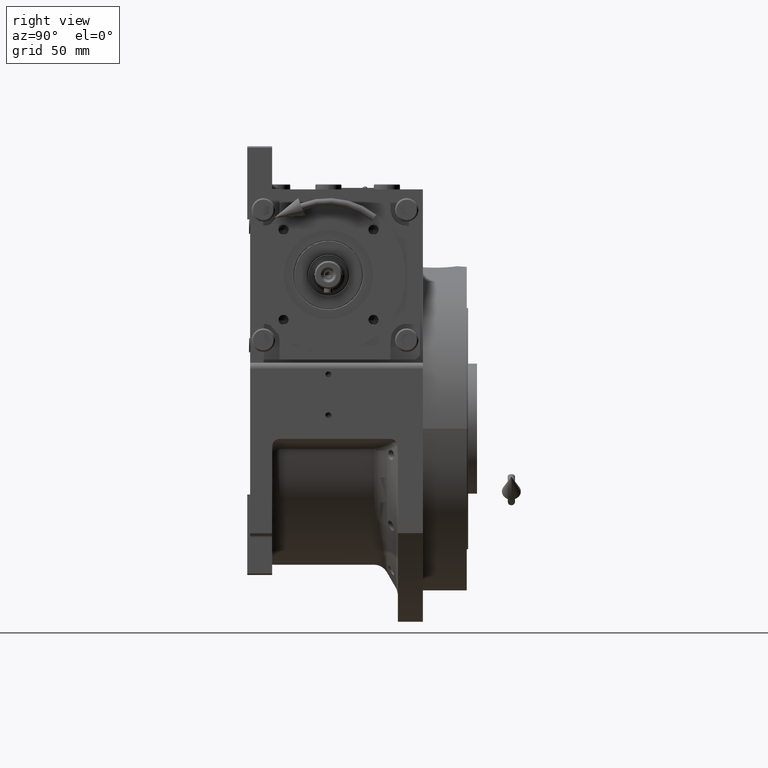
[diagram: clean part render]
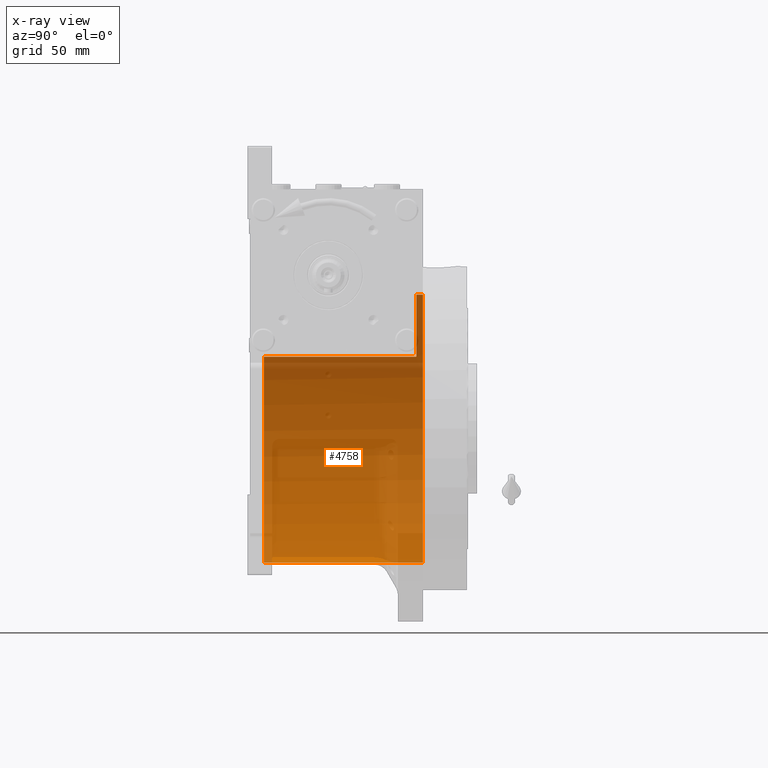
[diagram: x-ray — body ghosted, one internal face saturated and labeled with its STEP entity id]
A machine part, right view, then the same camera in x-ray: the body is ghosted and one INTERNAL B-rep face — a face not visible from any outside direction — is saturated and labeled: STEP entity #4758.
In plain terms, the highlighted cylindrical surface (partial cylindrical patch) has radius 91.5 mm, axis along (0, -1, 0).
Its self-contained STEP definition (entity closure, byte-faithful):
#2022 = ORIENTED_EDGE ( 'NONE', *, *, #13166, .F. ) ;
#2578 = CARTESIAN_POINT ( 'NONE',  ( -77.27386362800812947, 69.00000000000004263, 48.99999999999998579 ) ) ;
#3222 = DIRECTION ( 'NONE',  ( 0.000000000000000000, 1.000000000000000000, 0.000000000000000000 ) ) ;
#3641 = DIRECTION ( 'NONE',  ( 0.000000000000000000, 0.000000000000000000, 1.000000000000000000 ) ) ;
#4227 = CYLINDRICAL_SURFACE ( 'NONE', #43295, 91.50000000000000000 ) ;
#4758 = ADVANCED_FACE ( 'NONE', ( #13722 ), #4227, .F. ) ;
#6984 = EDGE_CURVE ( 'NONE', #25035, #27068, #33714, .T. ) ;
#7426 = DIRECTION ( 'NONE',  ( 0.000000000000000000, 0.000000000000000000, 1.000000000000000000 ) ) ;
#8860 = VERTEX_POINT ( 'NONE', #39074 ) ;
#9641 = DIRECTION ( 'NONE',  ( 1.776356839400250465E-15, 0.000000000000000000, -1.000000000000000000 ) ) ;
#11359 = CARTESIAN_POINT ( 'NONE',  ( 1.120551821219827868E-14, 60.00000000000000000, 91.50000000000000000 ) ) ;
#11365 = CARTESIAN_POINT ( 'NONE',  ( -77.27386362800814368, -44.00000000000000000, 49.00000000000000000 ) ) ;
#11747 = AXIS2_PLACEMENT_3D ( 'NONE', #14921, #36338, #9641 ) ;
#13166 = EDGE_CURVE ( 'NONE', #27068, #15221, #39805, .T. ) ;
#13722 = FACE_OUTER_BOUND ( 'NONE', #49487, .T. ) ;
#14921 = CARTESIAN_POINT ( 'NONE',  ( 0.000000000000000000, 60.00000000000000000, 0.000000000000000000 ) ) ;
#15221 = VERTEX_POINT ( 'NONE', #49502 ) ;
#18585 = LINE ( 'NONE', #67766, #32468 ) ;
#18632 = ORIENTED_EDGE ( 'NONE', *, *, #31077, .F. ) ;
#19669 = DIRECTION ( 'NONE',  ( 0.000000000000000000, 0.000000000000000000, -1.000000000000000000 ) ) ;
#19783 = ORIENTED_EDGE ( 'NONE', *, *, #66678, .F. ) ;
#21601 = LINE ( 'NONE', #58175, #30055 ) ;
#23825 = VERTEX_POINT ( 'NONE', #43110 ) ;
#25035 = VERTEX_POINT ( 'NONE', #44862 ) ;
#27068 = VERTEX_POINT ( 'NONE', #11365 ) ;
#30055 = VECTOR ( 'NONE', #47956, 1000.000000000000000 ) ;
#31077 = EDGE_CURVE ( 'NONE', #8860, #25035, #21601, .T. ) ;
#31334 = ORIENTED_EDGE ( 'NONE', *, *, #6984, .F. ) ;
#31452 = AXIS2_PLACEMENT_3D ( 'NONE', #55549, #3222, #7426 ) ;
#32468 = VECTOR ( 'NONE', #40726, 1000.000000000000000 ) ;
#33714 = CIRCLE ( 'NONE', #31452, 91.50000000000000000 ) ;
#35235 = CARTESIAN_POINT ( 'NONE',  ( 0.000000000000000000, 64.50000000000000000, 0.000000000000000000 ) ) ;
#36338 = DIRECTION ( 'NONE',  ( 0.000000000000000000, 1.000000000000000000, 0.000000000000000000 ) ) ;
#39074 = CARTESIAN_POINT ( 'NONE',  ( 0.000000000000000000, 64.50000000000000000, -91.50000000000000000 ) ) ;
#39805 = LINE ( 'NONE', #2578, #47816 ) ;
#40726 = DIRECTION ( 'NONE',  ( 0.000000000000000000, -1.000000000000000000, 0.000000000000000000 ) ) ;
#41563 = DIRECTION ( 'NONE',  ( -0.000000000000000000, -1.000000000000000000, -0.000000000000000000 ) ) ;
#43110 = CARTESIAN_POINT ( 'NONE',  ( 1.120551821219827868E-14, 64.50000000000000000, 91.50000000000000000 ) ) ;
#43295 = AXIS2_PLACEMENT_3D ( 'NONE', #46036, #47085, #19669 ) ;
#44862 = CARTESIAN_POINT ( 'NONE',  ( 0.000000000000000000, -44.00000000000000000, -91.50000000000000000 ) ) ;
#45980 = EDGE_CURVE ( 'NONE', #23825, #62625, #18585, .T. ) ;
#46036 = CARTESIAN_POINT ( 'NONE',  ( 0.000000000000000000, 69.00000000000004263, 0.000000000000000000 ) ) ;
#47085 = DIRECTION ( 'NONE',  ( 0.000000000000000000, -1.000000000000000000, 0.000000000000000000 ) ) ;
#47816 = VECTOR ( 'NONE', #66181, 1000.000000000000000 ) ;
#47956 = DIRECTION ( 'NONE',  ( 0.000000000000000000, -1.000000000000000000, 0.000000000000000000 ) ) ;
#49487 = EDGE_LOOP ( 'NONE', ( #19783, #52724, #56834, #2022, #31334, #18632 ) ) ;
#49502 = CARTESIAN_POINT ( 'NONE',  ( -77.27386362800814368, 60.00000000000000000, 48.99999999999998579 ) ) ;
#49620 = CIRCLE ( 'NONE', #57466, 91.50000000000000000 ) ;
#52724 = ORIENTED_EDGE ( 'NONE', *, *, #45980, .T. ) ;
#53730 = EDGE_CURVE ( 'NONE', #15221, #62625, #56579, .T. ) ;
#55549 = CARTESIAN_POINT ( 'NONE',  ( 0.000000000000000000, -44.00000000000000000, 0.000000000000000000 ) ) ;
#56579 = CIRCLE ( 'NONE', #11747, 91.50000000000000000 ) ;
#56834 = ORIENTED_EDGE ( 'NONE', *, *, #53730, .F. ) ;
#57466 = AXIS2_PLACEMENT_3D ( 'NONE', #35235, #41563, #3641 ) ;
#58175 = CARTESIAN_POINT ( 'NONE',  ( 0.000000000000000000, 69.00000000000004263, -91.50000000000000000 ) ) ;
#62625 = VERTEX_POINT ( 'NONE', #11359 ) ;
#66181 = DIRECTION ( 'NONE',  ( -0.000000000000000000, 1.000000000000000000, -0.000000000000000000 ) ) ;
#66678 = EDGE_CURVE ( 'NONE', #23825, #8860, #49620, .T. ) ;
#67766 = CARTESIAN_POINT ( 'NONE',  ( 1.120551821219827868E-14, 69.00000000000004263, 91.50000000000000000 ) ) ;